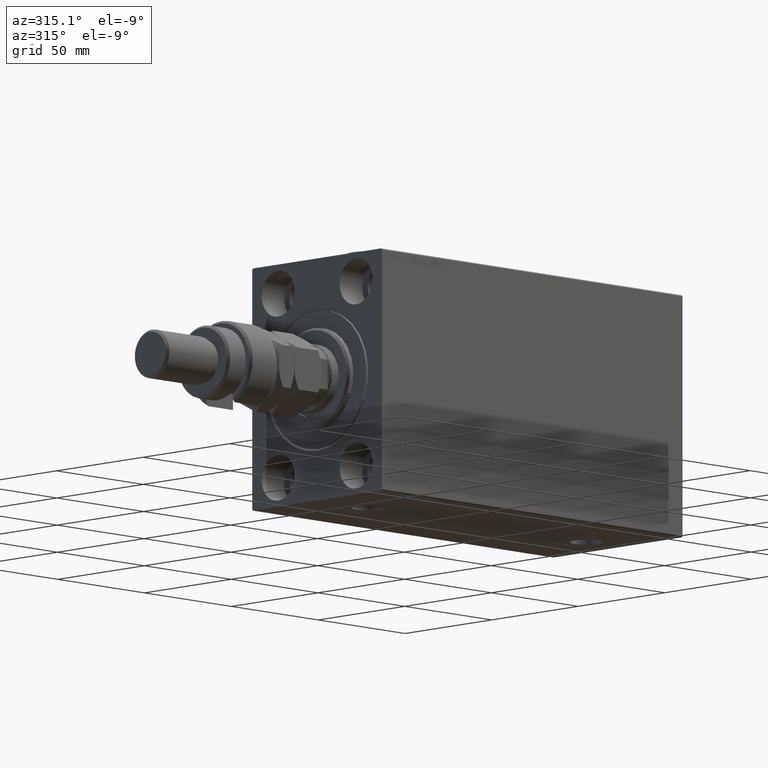
[diagram: clean part render]
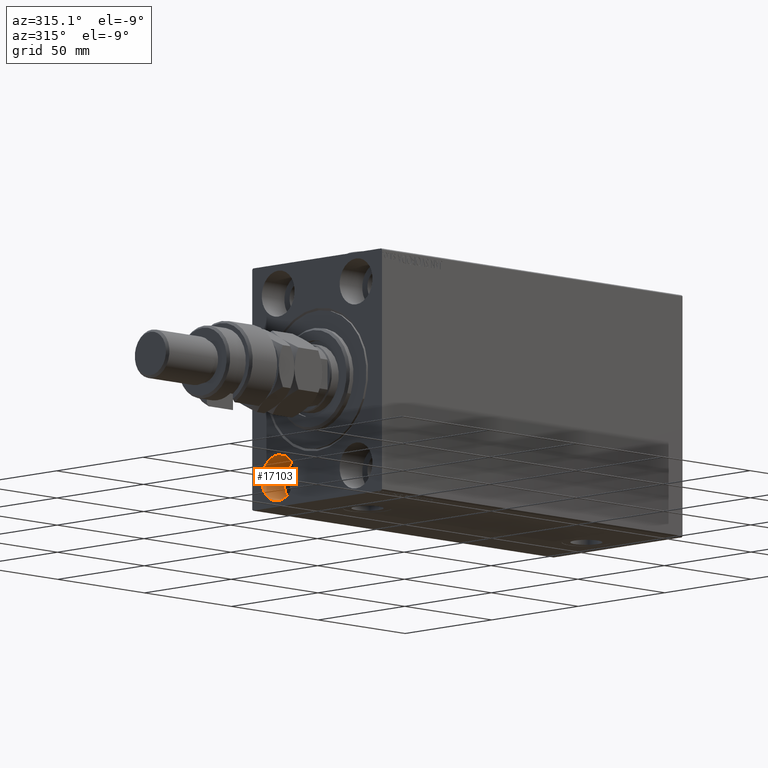
[diagram: same view with one face highlighted and labeled with its STEP entity id]
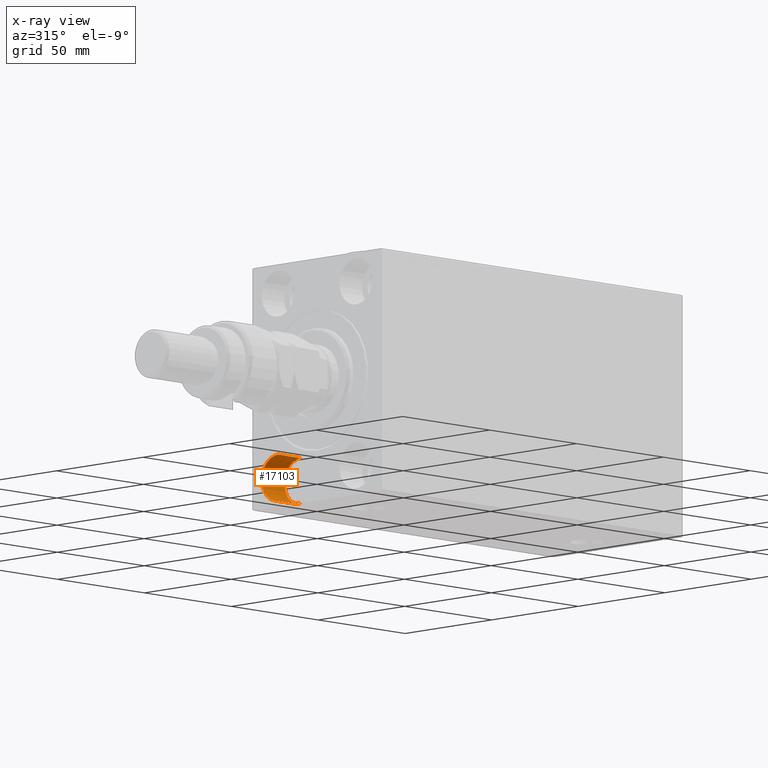
[diagram: x-ray of the same camera — body ghosted, the highlighted face saturated]
A machine part, auxiliary view. The second image highlights one B-rep face of the part: STEP entity #17103.
The next image is the same camera in x-ray: the body ghosted, the highlighted face saturated — about 0% of this face is hidden behind the body in this view.
In plain terms, the highlighted cylindrical surface (edge-blend (fillet) strip) has radius 9.5 mm, axis along (-1, -0, -0).
Its self-contained STEP definition (entity closure, byte-faithful):
#1 = LINE ( 'NONE', #6409, #36442 ) ;
#403 = DIRECTION ( 'NONE',  ( 0.000000000000000000, 0.000000000000000000, 1.000000000000000000 ) ) ;
#3365 = DIRECTION ( 'NONE',  ( -1.000000000000000000, 0.000000000000000000, 0.000000000000000000 ) ) ;
#6409 = CARTESIAN_POINT ( 'NONE',  ( 13.00000000000000000, 22.49999999999999645, -47.49999999999999289 ) ) ;
#7002 = CARTESIAN_POINT ( 'NONE',  ( 0.000000000000000000, 22.49999999999999645, -28.49999999999998934 ) ) ;
#8772 = AXIS2_PLACEMENT_3D ( 'NONE', #18931, #29641, #403 ) ;
#10142 = ORIENTED_EDGE ( 'NONE', *, *, #37759, .T. ) ;
#10527 = VERTEX_POINT ( 'NONE', #24998 ) ;
#10663 = DIRECTION ( 'NONE',  ( 0.000000000000000000, 0.000000000000000000, 1.000000000000000000 ) ) ;
#16944 = ORIENTED_EDGE ( 'NONE', *, *, #33948, .F. ) ;
#17103 = ADVANCED_FACE ( 'NONE', ( #20741 ), #28287, .F. ) ;
#18931 = CARTESIAN_POINT ( 'NONE',  ( 0.000000000000000000, 22.49999999999999645, -37.99999999999999289 ) ) ;
#20443 = ORIENTED_EDGE ( 'NONE', *, *, #47981, .T. ) ;
#20741 = FACE_OUTER_BOUND ( 'NONE', #38000, .T. ) ;
#21688 = CIRCLE ( 'NONE', #31024, 9.500000000000001776 ) ;
#21772 = VERTEX_POINT ( 'NONE', #35237 ) ;
#23891 = ORIENTED_EDGE ( 'NONE', *, *, #34235, .F. ) ;
#24998 = CARTESIAN_POINT ( 'NONE',  ( 13.00000000000000000, 22.49999999999999645, -28.49999999999998934 ) ) ;
#25400 = AXIS2_PLACEMENT_3D ( 'NONE', #27566, #46067, #39717 ) ;
#26504 = LINE ( 'NONE', #45504, #34100 ) ;
#27566 = CARTESIAN_POINT ( 'NONE',  ( 13.00000000000000000, 22.49999999999999645, -37.99999999999999289 ) ) ;
#28287 = CYLINDRICAL_SURFACE ( 'NONE', #25400, 9.500000000000001776 ) ;
#29641 = DIRECTION ( 'NONE',  ( -1.000000000000000000, 0.000000000000000000, 0.000000000000000000 ) ) ;
#31024 = AXIS2_PLACEMENT_3D ( 'NONE', #44029, #3365, #10663 ) ;
#32094 = CIRCLE ( 'NONE', #8772, 9.500000000000001776 ) ;
#33948 = EDGE_CURVE ( 'NONE', #48159, #21772, #1, .T. ) ;
#34100 = VECTOR ( 'NONE', #41595, 1000.000000000000000 ) ;
#34235 = EDGE_CURVE ( 'NONE', #10527, #48159, #21688, .T. ) ;
#35237 = CARTESIAN_POINT ( 'NONE',  ( 0.000000000000000000, 22.49999999999999645, -47.49999999999999289 ) ) ;
#36442 = VECTOR ( 'NONE', #47074, 1000.000000000000000 ) ;
#37759 = EDGE_CURVE ( 'NONE', #10527, #42533, #26504, .T. ) ;
#38000 = EDGE_LOOP ( 'NONE', ( #16944, #23891, #10142, #20443 ) ) ;
#39717 = DIRECTION ( 'NONE',  ( 0.000000000000000000, 0.000000000000000000, 1.000000000000000000 ) ) ;
#41595 = DIRECTION ( 'NONE',  ( -1.000000000000000000, -0.000000000000000000, -0.000000000000000000 ) ) ;
#42533 = VERTEX_POINT ( 'NONE', #7002 ) ;
#44029 = CARTESIAN_POINT ( 'NONE',  ( 13.00000000000000000, 22.49999999999999645, -37.99999999999999289 ) ) ;
#44673 = CARTESIAN_POINT ( 'NONE',  ( 13.00000000000000000, 22.49999999999999645, -47.49999999999999289 ) ) ;
#45504 = CARTESIAN_POINT ( 'NONE',  ( 13.00000000000000000, 22.49999999999999645, -28.49999999999998934 ) ) ;
#46067 = DIRECTION ( 'NONE',  ( -1.000000000000000000, -0.000000000000000000, -0.000000000000000000 ) ) ;
#47074 = DIRECTION ( 'NONE',  ( -1.000000000000000000, -0.000000000000000000, -0.000000000000000000 ) ) ;
#47981 = EDGE_CURVE ( 'NONE', #42533, #21772, #32094, .T. ) ;
#48159 = VERTEX_POINT ( 'NONE', #44673 ) ;